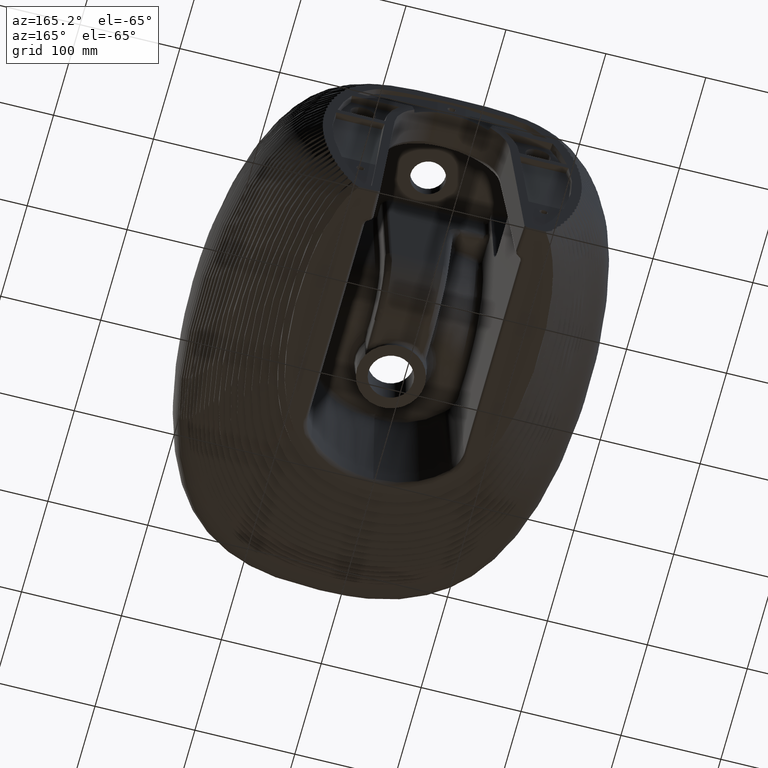
[diagram: clean part render]
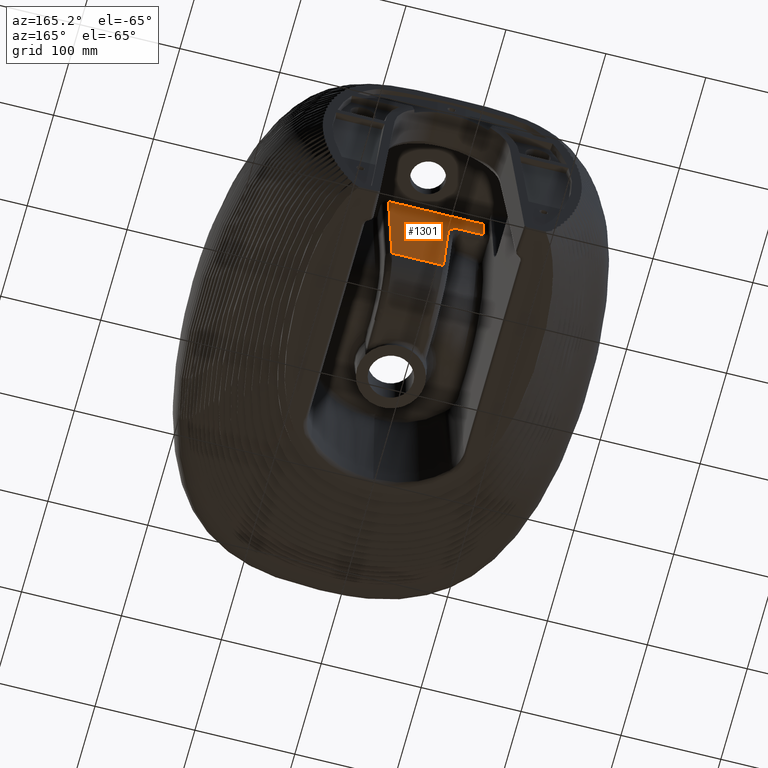
[diagram: same view with one face highlighted and labeled with its STEP entity id]
A machine part, auxiliary view. The second image highlights one B-rep face of the part: STEP entity #1301.
In plain terms, the highlighted planar face has unit normal (0, 0.9976, -0.0698).
Its self-contained STEP definition (entity closure, byte-faithful):
#313=ELLIPSE('',#5459,12.0293027769741,12.);
#342=LINE('',#6403,#520);
#346=LINE('',#6418,#524);
#347=LINE('',#6421,#525);
#348=LINE('',#6423,#526);
#349=LINE('',#6424,#527);
#520=VECTOR('',#5687,1.);
#524=VECTOR('',#5701,1.);
#525=VECTOR('',#5702,1.);
#526=VECTOR('',#5703,1.);
#527=VECTOR('',#5704,1.);
#786=B_SPLINE_CURVE_WITH_KNOTS('',3,(#6428,#6429,#6430,#6431,#6432,#6433,
#6434),.UNSPECIFIED.,.F.,.F.,(4,3,4),(0.,0.513091971302951,1.),
 .UNSPECIFIED.);
#1301=ADVANCED_FACE('',(#1674),#1637,.T.);
#1637=PLANE('',#5460);
#1674=FACE_OUTER_BOUND('',#1998,.T.);
#1998=EDGE_LOOP('',(#2377,#2378,#2379,#2380,#2381,#2382,#2383));
#2377=ORIENTED_EDGE('',*,*,#4532,.T.);
#2378=ORIENTED_EDGE('',*,*,#4533,.T.);
#2379=ORIENTED_EDGE('',*,*,#4534,.T.);
#2380=ORIENTED_EDGE('',*,*,#4525,.T.);
#2381=ORIENTED_EDGE('',*,*,#4535,.T.);
#2382=ORIENTED_EDGE('',*,*,#4536,.T.);
#2383=ORIENTED_EDGE('',*,*,#4537,.T.);
#4019=VERTEX_POINT('',#6404);
#4020=VERTEX_POINT('',#6405);
#4025=VERTEX_POINT('',#6419);
#4026=VERTEX_POINT('',#6420);
#4027=VERTEX_POINT('',#6422);
#4028=VERTEX_POINT('',#6425);
#4029=VERTEX_POINT('',#6427);
#4525=EDGE_CURVE('',#4019,#4020,#342,.T.);
#4532=EDGE_CURVE('',#4025,#4026,#346,.T.);
#4533=EDGE_CURVE('',#4026,#4027,#347,.T.);
#4534=EDGE_CURVE('',#4027,#4019,#348,.T.);
#4535=EDGE_CURVE('',#4020,#4028,#349,.T.);
#4536=EDGE_CURVE('',#4028,#4029,#313,.T.);
#4537=EDGE_CURVE('',#4029,#4025,#786,.T.);
#5459=AXIS2_PLACEMENT_3D('',#6426,#5705,#5706);
#5460=AXIS2_PLACEMENT_3D('',#6435,#5707,#5708);
#5687=DIRECTION('',(-1.,0.,0.));
#5701=DIRECTION('',(0.0348357558984539,0.0697141351125069,0.996958579619283));
#5702=DIRECTION('',(1.,0.,0.));
#5703=DIRECTION('',(-0.0522088164081529,-0.0696613391506086,-0.996203562188474));
#5704=DIRECTION('',(-0.0522088164081529,0.0696613391506086,0.996203562188474));
#5705=DIRECTION('',(0.,-0.997564050259825,0.0697564737441253));
#5706=DIRECTION('',(0.,0.0697564737441253,0.997564050259824));
#5707=DIRECTION('',(0.,0.997564050259824,-0.0697564737441253));
#5708=DIRECTION('',(0.,0.0697564737441253,0.997564050259824));
#6403=CARTESIAN_POINT('',(33.5609623234448,-134.527903655158,202.966337835828));
#6404=CARTESIAN_POINT('',(25.7704502729228,-134.527903655158,202.966337835828));
#6405=CARTESIAN_POINT('',(-25.7704502729228,-134.527903655158,202.966337835828));
#6418=CARTESIAN_POINT('',(-63.8607082400469,-127.243558149063,307.137331817077));
#6419=CARTESIAN_POINT('',(-64.7184828145041,-128.96015682871,282.588827002737));
#6420=CARTESIAN_POINT('',(-63.9846700632816,-127.491633469115,303.589689458482));
#6421=CARTESIAN_POINT('',(31.2389046650967,-127.491633469115,303.589689458482));
#6422=CARTESIAN_POINT('',(31.0438966754827,-127.491633469115,303.589689458482));
#6423=CARTESIAN_POINT('',(23.1517746120049,-138.021958220857,152.999029609026));
#6424=CARTESIAN_POINT('',(-22.9688163203975,-138.266076369456,149.507977438713));
#6425=CARTESIAN_POINT('',(-29.3473084946722,-129.755362333191,271.216858477653));
#6426=CARTESIAN_POINT('',(-41.3308629117271,-129.799278572032,270.588827002737));
#6427=CARTESIAN_POINT('',(-41.3308629117271,-128.96015682871,282.588827002737));
#6428=CARTESIAN_POINT('',(-41.3308629117271,-128.96015682871,282.588827002737));
#6429=CARTESIAN_POINT('',(-45.3308629117271,-128.96015682871,282.588827002737));
#6430=CARTESIAN_POINT('',(-49.3308629117271,-128.96015682871,282.588827002737));
#6431=CARTESIAN_POINT('',(-53.3308629117271,-128.96015682871,282.588827002737));
#6432=CARTESIAN_POINT('',(-57.1267362126528,-128.96015682871,282.588827002737));
#6433=CARTESIAN_POINT('',(-60.9226095135784,-128.96015682871,282.588827002737));
#6434=CARTESIAN_POINT('',(-64.7184828145041,-128.96015682871,282.588827002737));
#6435=CARTESIAN_POINT('',(33.5609623234448,-138.059919243725,152.456161690236));